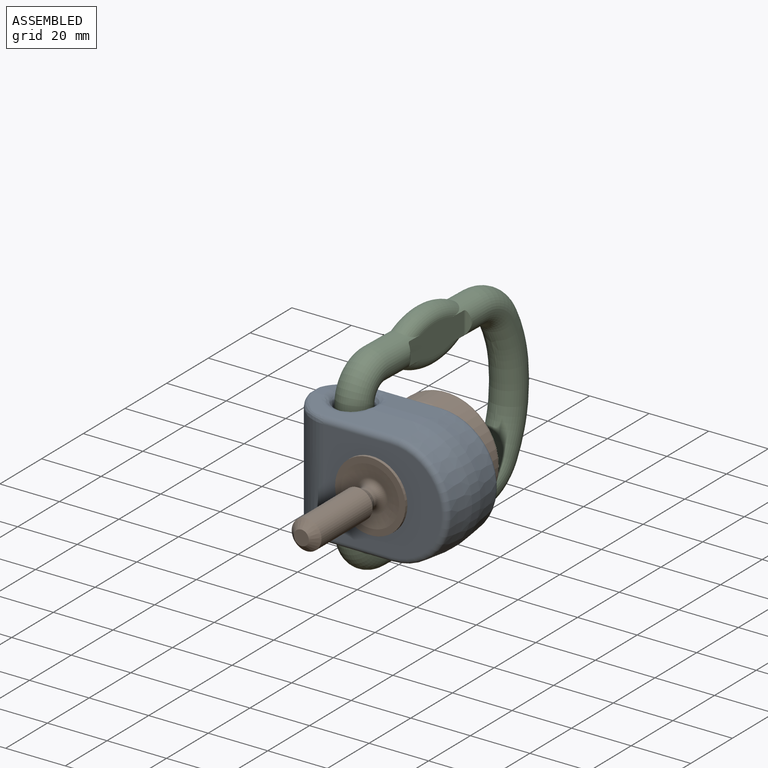
[diagram: assembled view]
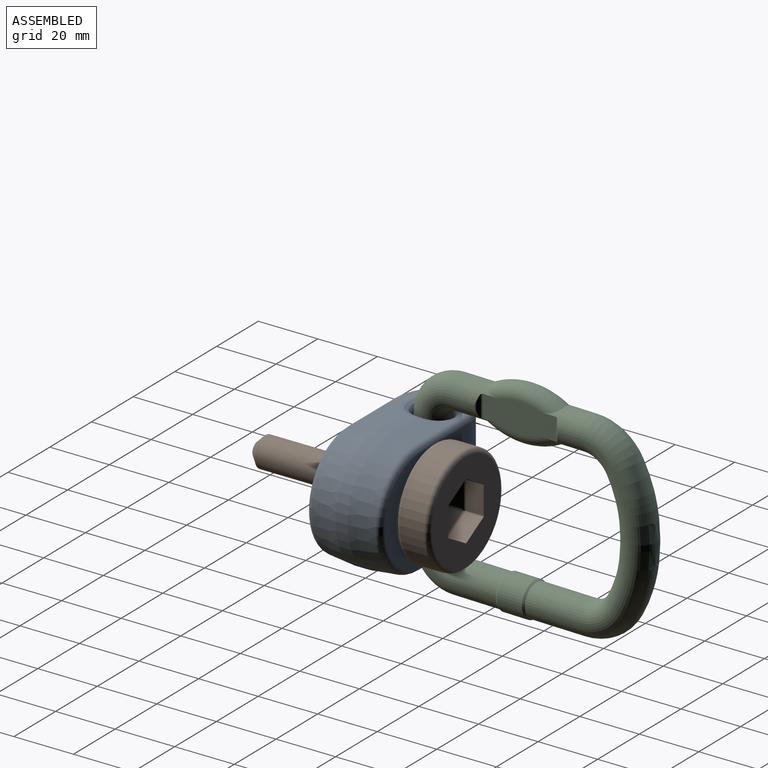
[diagram: assembled view, second angle]
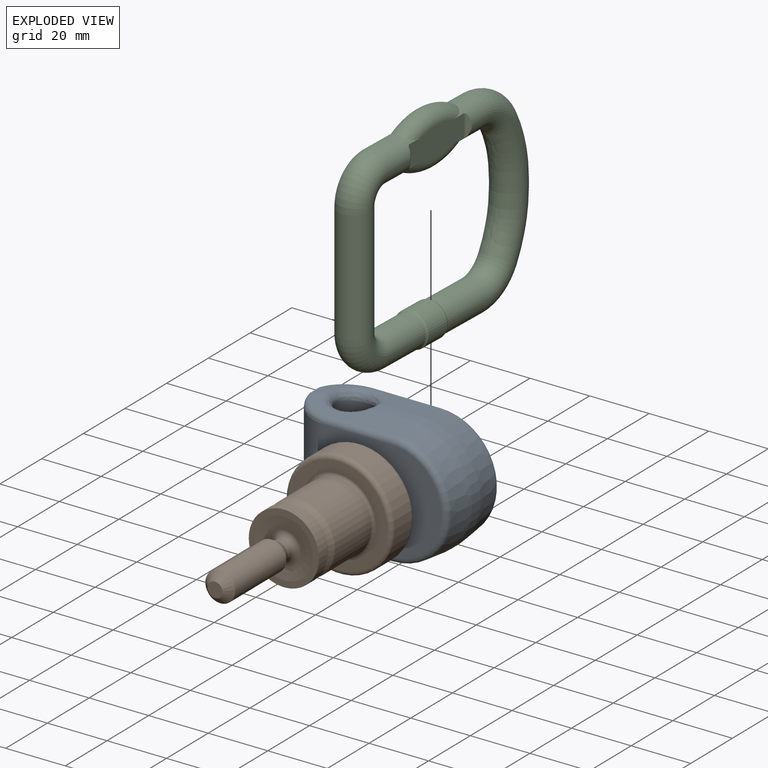
[diagram: exploded view]
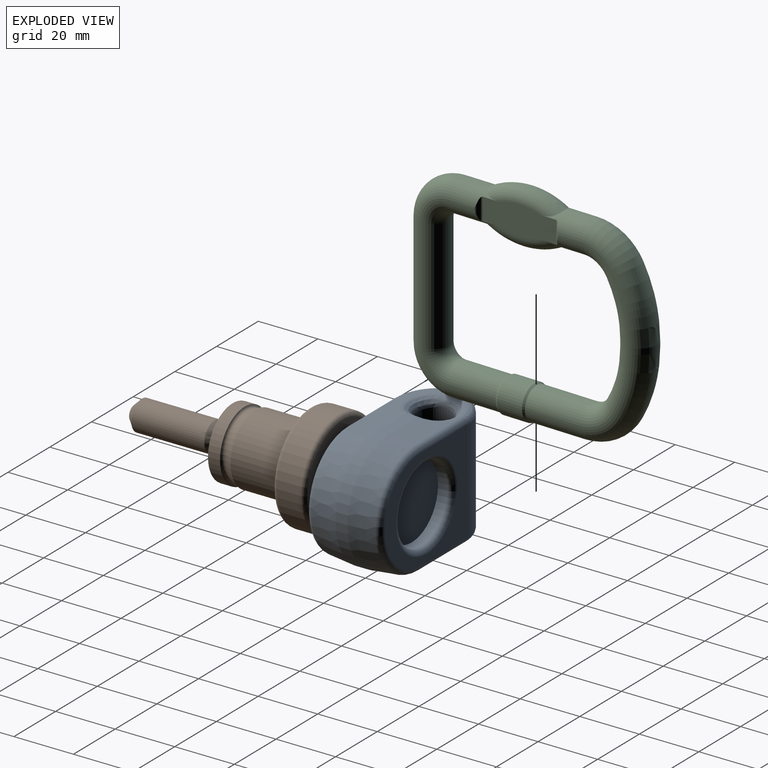
[diagram: exploded view, second angle]
ASSEMBLY  parts=3 mates=2
PART A: 51 faces, bbox 55.9x25.2x41.6 mm
  f0: torus R=9mm, axis (0,0,-1), area 1.7mm2, adj f3,f34,f46,f47
  f1: torus R=9mm, axis (0,0,1), area 1.7mm2, adj f3,f29,f43,f44
  f2: torus R=14.75mm, axis (0,1,0), area 127.4mm2, adj f4,f6,f9
  f3: cylinder r=6mm len=34mm, axis (0,0,1), area 1249.4mm2, adj f0,f1,f31,f32,f36,f37,f41,f42
  f4: cone r=12.75mm half-angle=4deg, axis (0,1,0), area 250mm2, adj f2,f5,f6
  f5: plane 25.07x25.07mm, normal (0,1,0), area 493.6mm2, adj f4
  f6: torus R=14.75mm, axis (0,1,0), area 127.4mm2, adj f2,f4,f9
  f7: plane 36x4mm, normal (-1,0,0), area 144mm2, adj f8,f11,f14,f19
  f8: cylinder r=12.5mm len=36.05mm, axis (0,0,-1), area 614.3mm2, adj f7,f9,f14,f18,f19,f20
  f9: plane 39.76x34.19mm, normal (0,1,0), area 550.5mm2, adj f2,f6,f8,f10,f17,f21
  f10: torus R=17.1mm, axis (0,1,0), area 168.7mm2, adj f9,f17,f21,f22
  f11: cylinder r=12.5mm len=36.05mm, axis (0,0,-1), area 614.3mm2, adj f7,f12,f14,f16,f19,f24
  f12: plane 39.76x34.19mm, normal (0,-1,0), area 1233.9mm2, adj f11,f13,f15,f25
  f13: torus R=17.1mm, axis (0,-1,0), area 168.7mm2, adj f12,f15,f25,f26
  f14: cylinder r=2mm len=4.1mm, axis (0,1,0), area 12.8mm2, adj f7,f8,f11,f16,f18,f27,f28,f33
  f15: cylinder r=2mm len=22.66mm, axis (-1,0,0), area 66.4mm2, adj f12,f13,f16,f28
  f16: bspline ~12.36x10.71mm, area 49.5mm2, adj f11,f14,f15,f28
  f17: cylinder r=2mm len=22.66mm, axis (-1,0,0), area 66.4mm2, adj f9,f10,f18,f30,f31
  f18: bspline ~12.36x10.71mm, area 49.5mm2, adj f8,f14,f17,f32,f33
  f19: cylinder r=2mm len=4.1mm, axis (0,1,0), area 12.8mm2, adj f7,f8,f11,f20,f24,f34,f35,f40
  f20: bspline ~12.36x10.71mm, area 49.5mm2, adj f8,f19,f21,f35,f36
  f21: cylinder r=2mm len=22.66mm, axis (1,0,0), area 66.4mm2, adj f9,f10,f20,f37,f38
  f22: cone r=20mm half-angle=6deg, axis (0,-1,0), area 537.6mm2, adj f10,f23,f30,f38
  f23: cylinder r=20mm len=40mm, axis (0,1,0), area 251.3mm2, adj f22,f26,f29,f39
  f24: bspline ~12.36x10.71mm, area 49.5mm2, adj f11,f19,f25,f40
  f25: cylinder r=2mm len=22.66mm, axis (1,0,0), area 66.4mm2, adj f12,f13,f24,f40
  f26: cone r=20mm half-angle=6deg, axis (0,1,0), area 537.6mm2, adj f13,f23,f28,f40
  f27: plane 4.01x2.71mm, normal (0,0,-1), area 8.8mm2, adj f14,f28,f33,f41,f42,f45
  f28: plane 33.02x8.72mm, normal (0,-0.1,-0.99), area 196.1mm2, adj f14,f15,f16,f26,f27,f29,f42
  f29: plane 13.71x4.01mm, normal (0,0,-1), area 52.8mm2, adj f1,f23,f28,f30,f42,f43,f44
  f30: plane 20.64x8.72mm, normal (0,0.1,-0.99), area 129.7mm2, adj f17,f22,f29,f44
  f31: bspline ~3.34x3.28mm, area 7.8mm2, adj f3,f17,f32,f44
  f32: bspline ~3.34x3.31mm, area 3.8mm2, adj f3,f18,f31,f45
  f33: plane 9.56x8.85mm, normal (0,0.1,-0.99), area 12.3mm2, adj f14,f18,f27,f45
  f34: plane 4.01x2.71mm, normal (0,0,1), area 8.8mm2, adj f0,f19,f35,f40,f46,f47,f50
  f35: plane 9.56x8.85mm, normal (0,0.1,0.99), area 11.7mm2, adj f19,f20,f34,f47
  f36: bspline ~3.34x3.31mm, area 3.8mm2, adj f3,f20,f37,f47
  f37: bspline ~3.34x3.28mm, area 7.8mm2, adj f3,f21,f36,f48
  f38: plane 20.64x8.72mm, normal (0,0.1,0.99), area 130.9mm2, adj f21,f22,f39,f48
  f39: plane 13.71x4.01mm, normal (0,0,1), area 52.8mm2, adj f23,f38,f40,f48,f49,f50
  f40: plane 33.24x8.94mm, normal (0,-0.1,0.99), area 196.5mm2, adj f19,f24,f25,f26,f34,f39,f50
  f41: torus R=9mm, axis (0,0,1), area 14.9mm2, adj f3,f27,f42,f45
  f42: bspline ~16.92x7.27mm, area 84.1mm2, adj f3,f27,f28,f29,f41,f43
  f43: torus R=9mm, axis (0,0,1), area 13.2mm2, adj f1,f3,f29,f42
  f44: bspline ~9.09x8.09mm, area 48.4mm2, adj f1,f3,f29,f30,f31
  f45: bspline ~9.05x7.91mm, area 47.3mm2, adj f3,f27,f32,f33,f41
  f46: torus R=9mm, axis (0,0,-1), area 13.2mm2, adj f0,f3,f34,f50
  f47: bspline ~9.05x7.91mm, area 47.3mm2, adj f0,f3,f34,f35,f36
  f48: bspline ~9.14x8.14mm, area 48.4mm2, adj f3,f37,f38,f39,f49
  f49: torus R=9mm, axis (0,0,-1), area 14.9mm2, adj f3,f39,f48,f50
  f50: bspline ~16.92x7.27mm, area 84.1mm2, adj f3,f34,f39,f40,f46,f49
PART B: 63 faces, bbox 39x70x39 mm
  f0: torus R=12.8mm, axis (0,-1,0), area 60mm2, adj f7,f61,f62
  f1: torus R=12mm, axis (0,-1,0), area 12.1mm2, adj f8,f9,f60
  f2: torus R=16.5mm, axis (0,-1,0), area 129.2mm2, adj f10,f59,f61
  f3: torus R=12mm, axis (0,-1,0), area 48.5mm2, adj f9,f11,f58
  f4: torus R=16.5mm, axis (0,-1,0), area 129.2mm2, adj f10,f56,f57
  f5: torus R=5.2mm, axis (0,-1,0), area 86.9mm2, adj f12,f13
  f6: torus R=4.4mm, axis (0,-1,0), area 6.4mm2, adj f13,f15,f25
  f7: cylinder r=11.8mm len=23.6mm, axis (0,-1,0), area 1292mm2, adj f0,f8,f62
  f8: cone r=11.8mm half-angle=20deg, axis (0,1,0), area 155.3mm2, adj f1,f7,f60
  f9: cylinder r=11mm len=22mm, axis (0,-1,0), area 15.2mm2, adj f1,f3,f58,f60
  f10: cylinder r=18mm len=36mm, axis (0,-1,0), area 904.8mm2, adj f2,f4,f57,f59
  f11: cylinder r=11.8mm len=23.6mm, axis (0,-1,0), area 296.6mm2, adj f3,f55,f58
  f12: cone r=9.72mm half-angle=82deg, axis (0,-1,0), area 204.7mm2, adj f5,f55
  f13: cylinder r=3.2mm len=6.4mm, axis (0,-1,0), area 23.7mm2, adj f5,f6,f25
  f14: cylinder r=2mm len=8.69mm, axis (0,-0.45,0.89), area 9.5mm2, adj f19,f22,f31,f32,f37,f38
  f15: cone r=5mm half-angle=30deg, axis (0,-1,0), area 86.1mm2, adj f6,f16,f25
  f16: cylinder r=5mm len=24.5mm, axis (0,-1,0), area 769.7mm2, adj f15,f17
  f17: cone r=5mm half-angle=45deg, axis (0,1,0), area 83.3mm2, adj f16,f18
  f18: plane 5x5mm, normal (0,-1,0), area 19.6mm2, adj f17
  f19: bspline ~0.89x0.77mm, area 0.5mm2, adj f14,f20,f22,f26
  f20: bspline ~1x0.89mm, area 0.5mm2, adj f19,f21,f26,f27
  f21: bspline ~0.89x0.77mm, area 0.5mm2, adj f20,f23,f27,f28
  f22: bspline ~0.89x0.77mm, area 0.5mm2, adj f14,f19,f24,f29
  f23: bspline ~0.89x0.77mm, area 0.5mm2, adj f21,f24,f28,f30
  f24: bspline ~1x0.89mm, area 0.5mm2, adj f22,f23,f29,f30
  f25: torus R=4.4mm, axis (0,-1,0), area 6.4mm2, adj f6,f13,f15
  f26: cylinder r=2mm len=8mm, axis (0.77,-0.45,0.45), area 9.5mm2, adj f19,f20,f32,f33,f38,f40
  f27: cylinder r=2mm len=8mm, axis (0.77,-0.45,-0.45), area 9.5mm2, adj f20,f21,f33,f34,f40,f42
  f28: cylinder r=2mm len=8.69mm, axis (0,-0.45,-0.89), area 9.5mm2, adj f21,f23,f34,f35,f42,f44
  f29: cylinder r=2mm len=8mm, axis (-0.77,-0.45,0.45), area 9.5mm2, adj f22,f24,f31,f36,f37,f47
  f30: cylinder r=2mm len=8mm, axis (-0.77,-0.45,-0.45), area 9.5mm2, adj f23,f24,f35,f36,f44,f47
  f31: plane 8.08x7mm, normal (-0.25,0.87,0.43), area 32.7mm2, adj f14,f29,f37
  f32: plane 8.08x7mm, normal (0.25,0.87,0.43), area 32.7mm2, adj f14,f26,f38
  f33: plane 8.08x7mm, normal (0.5,0.87,0), area 32.7mm2, adj f26,f27,f40
  f34: plane 8.08x7mm, normal (0.25,0.87,-0.43), area 32.7mm2, adj f27,f28,f42
  f35: plane 8.08x7mm, normal (-0.25,0.87,-0.43), area 32.7mm2, adj f28,f30,f44
  f36: plane 8.08x7mm, normal (-0.5,0.87,0), area 32.7mm2, adj f29,f30,f47
  f37: cylinder r=1mm len=8.68mm, axis (-0.87,0,-0.5), area 9.7mm2, adj f14,f29,f31,f38,f39,f46,f47,f49
  f38: cylinder r=1mm len=8.68mm, axis (-0.87,0,0.5), area 9.7mm2, adj f14,f26,f32,f37,f39,f40,f41,f50
  f39: cylinder r=0.5mm len=6.28mm, axis (0,1,0), area 3.2mm2, adj f37,f38,f49,f50,f56
  f40: cylinder r=1mm len=9.74mm, axis (0,0,1), area 9.7mm2, adj f26,f27,f33,f38,f41,f42,f43,f51
  f41: cylinder r=0.5mm len=6.28mm, axis (0,1,0), area 3.2mm2, adj f38,f40,f50,f51,f56
  f42: cylinder r=1mm len=8.68mm, axis (0.87,0,0.5), area 9.7mm2, adj f27,f28,f34,f40,f43,f44,f45,f52
  f43: cylinder r=0.5mm len=6.28mm, axis (0,1,0), area 3.2mm2, adj f40,f42,f51,f52,f56
  f44: cylinder r=1mm len=8.68mm, axis (0.87,0,-0.5), area 9.7mm2, adj f28,f30,f35,f42,f45,f47,f48,f53
  f45: cylinder r=0.5mm len=6.28mm, axis (0,1,0), area 3.2mm2, adj f42,f44,f52,f53,f56
  f46: cylinder r=0.5mm len=6.28mm, axis (0,1,0), area 3.2mm2, adj f37,f47,f49,f54,f56
  f47: cylinder r=1mm len=9.74mm, axis (0,0,-1), area 9.7mm2, adj f29,f30,f36,f37,f44,f46,f48,f54
  f48: cylinder r=0.5mm len=6.28mm, axis (0,1,0), area 3.2mm2, adj f44,f47,f53,f54,f56
  f49: plane 8x5.92mm, normal (-0.5,0,0.87), area 54.7mm2, adj f37,f39,f46,f56
  f50: plane 8x5.92mm, normal (0.5,0,0.87), area 54.7mm2, adj f38,f39,f41,f56
  f51: plane 9.24x5.92mm, normal (1,0,0), area 54.7mm2, adj f40,f41,f43,f56
  f52: plane 8x5.92mm, normal (0.5,0,-0.87), area 54.7mm2, adj f42,f43,f45,f56
  f53: plane 8x5.92mm, normal (-0.5,0,-0.87), area 54.7mm2, adj f44,f45,f48,f56
  f54: plane 9.24x5.92mm, normal (-1,0,0), area 54.7mm2, adj f46,f47,f48,f56
  f55: plane 23.6x23.6mm, normal (0,-1,0), area 140.4mm2, adj f11,f12
  f56: plane 33x33mm, normal (0,1,0), area 605.1mm2, adj f4,f39,f41,f43,f45,f46,f48,f49
  f57: torus R=16.5mm, axis (0,-1,0), area 129.2mm2, adj f4,f10,f56
  f58: torus R=12mm, axis (0,-1,0), area 48.5mm2, adj f3,f9,f11
  f59: torus R=16.5mm, axis (0,-1,0), area 129.2mm2, adj f2,f10,f61
  f60: torus R=12mm, axis (0,-1,0), area 12.1mm2, adj f1,f8,f9
  f61: plane 33x33mm, normal (0,-1,0), area 340.6mm2, adj f0,f2,f59,f62
  f62: torus R=12.8mm, axis (0,-1,0), area 60mm2, adj f0,f7,f61
PART C: 41 faces, bbox 13.4x87x74.2 mm
  f0: cylinder r=5.5mm len=38mm, axis (0,0,-1), area 1313.2mm2, adj f1,f2,f39,f40
  f1: torus R=9mm, axis (1,0.03,0), area 244.3mm2, adj f0,f3,f40
  f2: torus R=9mm, axis (1,0.03,0), area 244.3mm2, adj f0,f4,f39
  f3: cylinder r=5.5mm len=16.7mm, axis (-0.03,1,0), area 369.4mm2, adj f1,f5,f6,f8,f27,f30,f31,f33
  f4: cylinder r=5.5mm len=16.84mm, axis (0.03,-1,0), area 570.2mm2, adj f2,f32,f39
  f5: torus R=21.4mm, axis (1,0.03,0), area 148.2mm2, adj f3,f7,f36,f37
  f6: torus R=21.4mm, axis (1,0.03,0), area 148.2mm2, adj f3,f7,f33,f37
  f7: cylinder r=5.5mm len=14.7mm, axis (-0.03,1,0), area 300.9mm2, adj f5,f6,f10,f22,f23,f24,f25,f26
  f8: cylinder r=1mm len=7.55mm, axis (0,0,1), area 7.5mm2, adj f3,f27,f35
  f9: cone r=5.91mm half-angle=30deg, axis (-0.03,1,0), area 28.7mm2, adj f11,f32
  f10: torus R=13.5mm, axis (1,0.03,0), area 248.1mm2, adj f7,f12,f26
  f11: cylinder r=5.91mm len=12.08mm, axis (0.03,-1,0), area 319.9mm2, adj f9,f13
  f12: torus R=41.29mm, axis (1,0.03,0), area 361.9mm2, adj f10,f14,f21
  f13: cone r=5.91mm half-angle=30deg, axis (0.03,-1,0), area 28.7mm2, adj f11,f20
  f14: cylinder r=5.5mm len=11mm, axis (0,0,1), area 69.1mm2, adj f12,f15,f19,f21
  f15: torus R=41.29mm, axis (-1,-0.03,0), area 361.9mm2, adj f14,f18,f19
  f16: cylinder r=5.5mm len=18.84mm, axis (0.03,-1,0), area 639.3mm2, adj f17,f18,f20
  f17: torus R=13.5mm, axis (1,0.03,0), area 248.1mm2, adj f16,f18,f19
  f18: torus R=13.5mm, axis (1,0.03,0), area 248.1mm2, adj f15,f16,f17
  f19: torus R=41.29mm, axis (-1,-0.03,0), area 361.9mm2, adj f14,f15,f17
  f20: plane 11.02x11.01mm, normal (-0.03,1,0), area 0.3mm2, adj f13,f16
  f21: torus R=41.29mm, axis (1,0.03,0), area 361.9mm2, adj f12,f14,f26
  f22: plane 6.35x0.54mm, normal (-0.47,-0.88,0), area 3.2mm2, adj f7,f25,f28
  f23: plane 6.35x0.52mm, normal (0.53,-0.85,0), area 3.2mm2, adj f7,f24,f29
  f24: cylinder r=1mm len=4.56mm, axis (0,0,1), area 2.2mm2, adj f7,f23
  f25: cylinder r=1mm len=4.56mm, axis (0,0,1), area 2.2mm2, adj f7,f22
  f26: torus R=13.5mm, axis (1,0.03,0), area 248.1mm2, adj f7,f10,f21
  f27: plane 6.35x0.52mm, normal (-0.53,0.85,0), area 3.2mm2, adj f3,f8,f34
  f28: cylinder r=1mm len=7.55mm, axis (0,0,1), area 7.3mm2, adj f7,f22,f35
  f29: cylinder r=1mm len=7.55mm, axis (0,0,1), area 7.3mm2, adj f7,f23,f37
  f30: cylinder r=1mm len=7.55mm, axis (0,0,1), area 7.3mm2, adj f3,f31,f37
  f31: plane 6.35x0.54mm, normal (0.47,0.88,0), area 3.2mm2, adj f3,f30,f38
  f32: plane 11.02x11.01mm, normal (0.03,-1,0), area 0.3mm2, adj f4,f9
  f33: torus R=21.4mm, axis (1,0.03,0), area 148.2mm2, adj f3,f6,f7,f35
  f34: cylinder r=1mm len=4.56mm, axis (0,0,1), area 2.2mm2, adj f3,f27
  f35: plane 24.99x10mm, normal (-1,-0.03,0), area 212.2mm2, adj f3,f7,f8,f28,f33,f36
  f36: torus R=21.4mm, axis (1,0.03,0), area 148.2mm2, adj f3,f5,f7,f35
  f37: plane 24.99x10mm, normal (1,0.03,0), area 212.2mm2, adj f3,f5,f6,f7,f29,f30
  f38: cylinder r=1mm len=4.56mm, axis (0,0,1), area 2.2mm2, adj f3,f31
  f39: torus R=9mm, axis (1,0.03,0), area 244.3mm2, adj f0,f2,f4
  f40: torus R=9mm, axis (1,0.03,0), area 244.3mm2, adj f0,f1,f3
PLACE A at identity fixed
PLACE B t=(-3.17,0,0)mm
PLACE C rot(axis=(0,-1,0),180deg) t=(-84,0,-0.54)mm
MATE planar B.f8 <-> A.f9  axis (0,-1,0) through (-26.17,12.5,0)mm
MATE revolute C.f0 <-> A.f49  axis (0,0,1) through (-42,1.5,-20)mm
